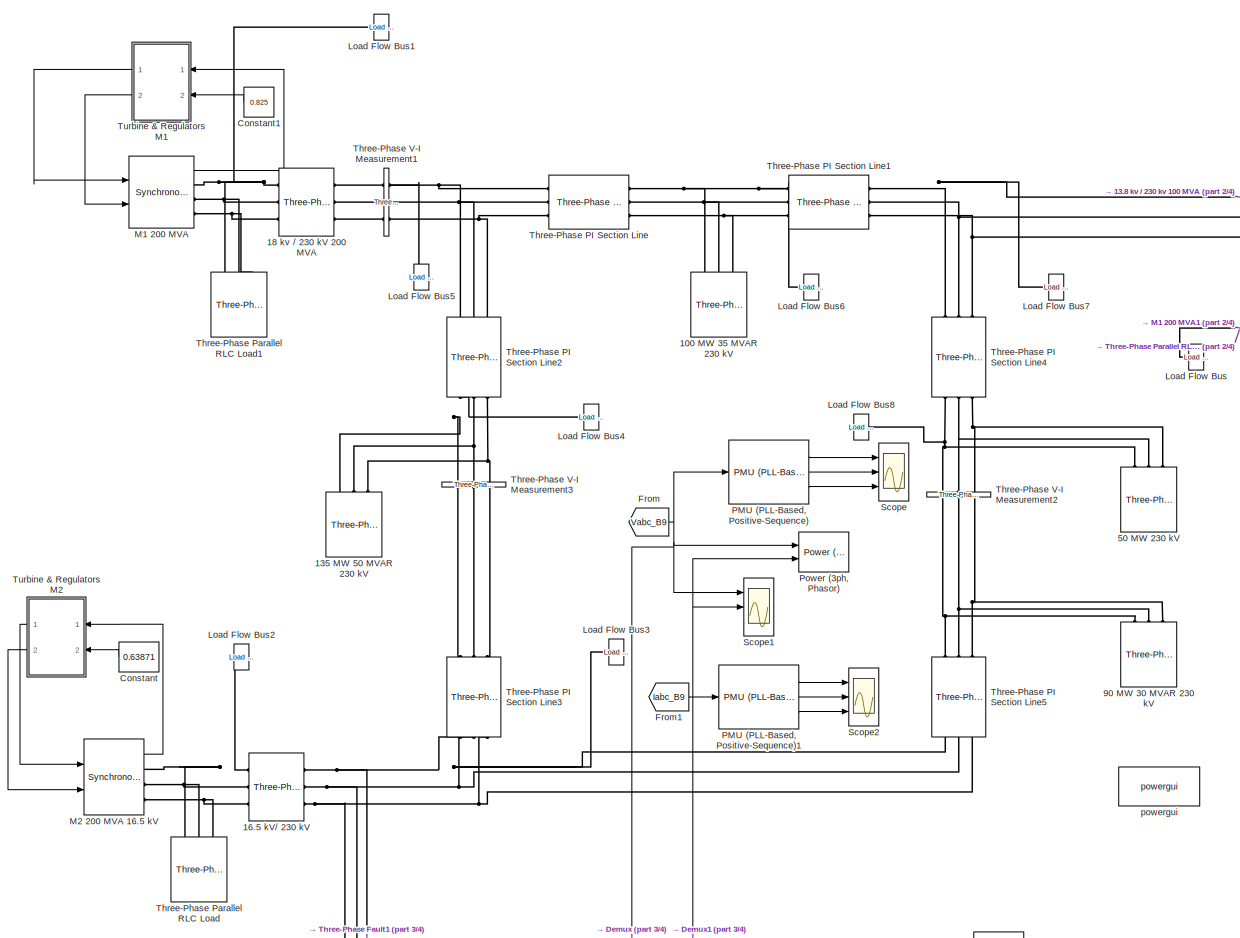
[diagram: root canvas - part 1/4, top left region]
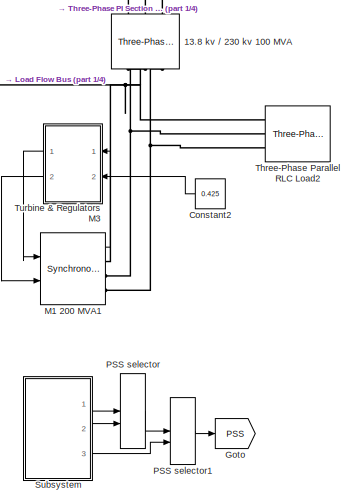
[diagram: root canvas - part 2/4, top right region]
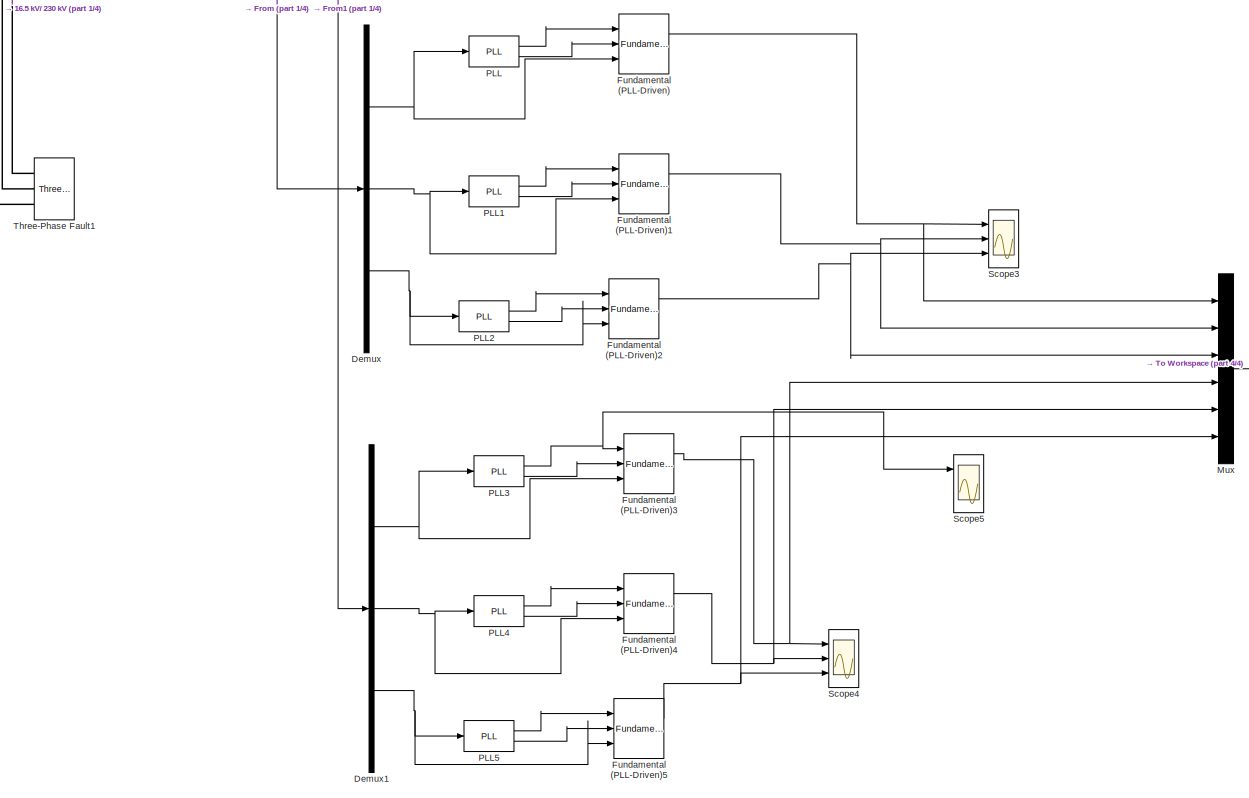
[diagram: root canvas - part 3/4, bottom center region]
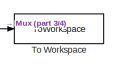
[diagram: root canvas - part 4/4, bottom right region]
MODEL slx_2ccf89e54fdf
KIND model
CONFIG AbsTol = auto
CONFIG EnableMultiTasking = off
CONFIG FixedStep = auto
CONFIG MaxStep = auto
CONFIG MinStep = auto
CONFIG RelTol = 1e-3
CONFIG SampleTimeConstraint = Unconstrained
CONFIG SolverName = ode5
CONFIG StartTime = 0.0
CONFIG StopTime = 10
BLOCK [Reference] 100 MW 35 MVAR 230 kV  REF=spsThreePhaseSeriesRLCLoadLib/Three-Phase
Series RLC Load
  AttributesFormatString = \n
  NameLocation = right
  Ports = [0, 0, 0, 0, 0, 3]
  SourceBlock = spsThreePhaseSeriesRLCLoadLib/Three-Phase\nSeries RLC Load
  SourceProductBaseCode = PS
  SourceType = Three-Phase Series RLC Load
BLOCK [Reference] 13.8 kv // 230 kv 100 MVA  REF=spsThreePhaseTransformerTwoWindingsLib/Three-Phase
Transformer
(Two Windings)
  NameLocation = left
  Ports = [0, 0, 0, 0, 0, 3, 3]
  SourceBlock = spsThreePhaseTransformerTwoWindingsLib/Three-Phase\nTransformer\n(Two Windings)
  SourceProductBaseCode = PS
  SourceType = Three-Phase Transformer (Two Windings)
BLOCK [Reference] 135 MW 50 MVAR 230 kV  REF=spsThreePhaseSeriesRLCLoadLib/Three-Phase
Series RLC Load
  AttributesFormatString = \n
  NameLocation = right
  Ports = [0, 0, 0, 0, 0, 3]
  SourceBlock = spsThreePhaseSeriesRLCLoadLib/Three-Phase\nSeries RLC Load
  SourceProductBaseCode = PS
  SourceType = Three-Phase Series RLC Load
BLOCK [Reference] 16.5 kV// 230 kV  REF=spsThreePhaseTransformerTwoWindingsLib/Three-Phase
Transformer
(Two Windings)
  NameLocation = top
  Ports = [0, 0, 0, 0, 0, 3, 3]
  SourceBlock = spsThreePhaseTransformerTwoWindingsLib/Three-Phase\nTransformer\n(Two Windings)
  SourceProductBaseCode = PS
  SourceType = Three-Phase Transformer (Two Windings)
BLOCK [Reference] 18 kv // 230 kV 200 MVA  REF=spsThreePhaseTransformerTwoWindingsLib/Three-Phase
Transformer
(Two Windings)
  Ports = [0, 0, 0, 0, 0, 3, 3]
  SourceBlock = spsThreePhaseTransformerTwoWindingsLib/Three-Phase\nTransformer\n(Two Windings)
  SourceProductBaseCode = PS
  SourceType = Three-Phase Transformer (Two Windings)
BLOCK [Reference] 50 MW 230 kV  REF=spsThreePhaseSeriesRLCLoadLib/Three-Phase
Series RLC Load
  AttributesFormatString = \n
  NameLocation = right
  Ports = [0, 0, 0, 0, 0, 3]
  SourceBlock = spsThreePhaseSeriesRLCLoadLib/Three-Phase\nSeries RLC Load
  SourceProductBaseCode = PS
  SourceType = Three-Phase Series RLC Load
BLOCK [Reference] 90 MW 30 MVAR 230 kV  REF=spsThreePhaseSeriesRLCLoadLib/Three-Phase
Series RLC Load
  AttributesFormatString = \n
  NameLocation = right
  Ports = [0, 0, 0, 0, 0, 3]
  SourceBlock = spsThreePhaseSeriesRLCLoadLib/Three-Phase\nSeries RLC Load
  SourceProductBaseCode = PS
  SourceType = Three-Phase Series RLC Load
BLOCK [Constant] Constant
  NameLocation = top
  Value = 0.63871
BLOCK [Constant] Constant1
  NameLocation = top
  Value = 0.825
BLOCK [Constant] Constant2
  NameLocation = top
  Value = 0.425
BLOCK [Demux] Demux
  Outputs = 3
  Ports = [1, 3]
BLOCK [Demux] Demux1
  Outputs = 3
  Ports = [1, 3]
BLOCK [From] From
  GotoTag = Vabc_B9
  TagVisibility = global
BLOCK [From] From1
  GotoTag = Iabc_B9
  TagVisibility = global
BLOCK [Reference] Fundamental (PLL-Driven)  REF=spsFundamentalPLLDrivenLib/Fundamental
(PLL-Driven)
  Ports = [3, 2]
  SourceBlock = spsFundamentalPLLDrivenLib/Fundamental\n(PLL-Driven)
  SourceProductBaseCode = PS
  SourceType = Fundamental (PLL-Driven)
BLOCK [Reference] Fundamental (PLL-Driven)1  REF=spsFundamentalPLLDrivenLib/Fundamental
(PLL-Driven)
  Ports = [3, 2]
  SourceBlock = spsFundamentalPLLDrivenLib/Fundamental\n(PLL-Driven)
  SourceProductBaseCode = PS
  SourceType = Fundamental (PLL-Driven)
BLOCK [Reference] Fundamental (PLL-Driven)2  REF=spsFundamentalPLLDrivenLib/Fundamental
(PLL-Driven)
  Ports = [3, 2]
  SourceBlock = spsFundamentalPLLDrivenLib/Fundamental\n(PLL-Driven)
  SourceProductBaseCode = PS
  SourceType = Fundamental (PLL-Driven)
BLOCK [Reference] Fundamental (PLL-Driven)3  REF=spsFundamentalPLLDrivenLib/Fundamental
(PLL-Driven)
  Ports = [3, 2]
  SourceBlock = spsFundamentalPLLDrivenLib/Fundamental\n(PLL-Driven)
  SourceProductBaseCode = PS
  SourceType = Fundamental (PLL-Driven)
BLOCK [Reference] Fundamental (PLL-Driven)4  REF=spsFundamentalPLLDrivenLib/Fundamental
(PLL-Driven)
  Ports = [3, 2]
  SourceBlock = spsFundamentalPLLDrivenLib/Fundamental\n(PLL-Driven)
  SourceProductBaseCode = PS
  SourceType = Fundamental (PLL-Driven)
BLOCK [Reference] Fundamental (PLL-Driven)5  REF=spsFundamentalPLLDrivenLib/Fundamental
(PLL-Driven)
  Ports = [3, 2]
  SourceBlock = spsFundamentalPLLDrivenLib/Fundamental\n(PLL-Driven)
  SourceProductBaseCode = PS
  SourceType = Fundamental (PLL-Driven)
BLOCK [Goto] Goto
  GotoTag = PSS
  TagVisibility = global
BLOCK [Reference] Load Flow Bus  REF=spsLoadFlowBusLib/Load Flow Bus
  AttributesFormatString = %<ID>\n%<Vbase>V\n%<VLF>pu\n%<angleLF>deg.
  Ports = [0, 0, 0, 0, 0, 1]
  SourceBlock = spsLoadFlowBusLib/Load Flow Bus
  SourceProductBaseCode = PS
  SourceType = Load Flow Bus
BLOCK [Reference] Load Flow Bus1  REF=spsLoadFlowBusLib/Load Flow Bus
  AttributesFormatString = %<ID>\n%<Vbase>V\n%<VLF>pu\n%<angleLF>deg.
  Ports = [0, 0, 0, 0, 0, 1]
  SourceBlock = spsLoadFlowBusLib/Load Flow Bus
  SourceProductBaseCode = PS
  SourceType = Load Flow Bus
BLOCK [Reference] Load Flow Bus2  REF=spsLoadFlowBusLib/Load Flow Bus
  AttributesFormatString = %<ID>\n%<Vbase>V\n%<VLF>pu\n%<angleLF>deg.
  Ports = [0, 0, 0, 0, 0, 1]
  SourceBlock = spsLoadFlowBusLib/Load Flow Bus
  SourceProductBaseCode = PS
  SourceType = Load Flow Bus
BLOCK [Reference] Load Flow Bus3  REF=spsLoadFlowBusLib/Load Flow Bus
  AttributesFormatString = %<ID>\n%<Vbase>V\n%<VLF>pu\n%<angleLF>deg.
  Ports = [0, 0, 0, 0, 0, 1]
  SourceBlock = spsLoadFlowBusLib/Load Flow Bus
  SourceProductBaseCode = PS
  SourceType = Load Flow Bus
BLOCK [Reference] Load Flow Bus4  REF=spsLoadFlowBusLib/Load Flow Bus
  AttributesFormatString = %<ID>\n%<Vbase>V\n%<VLF>pu\n%<angleLF>deg.
  Ports = [0, 0, 0, 0, 0, 1]
  SourceBlock = spsLoadFlowBusLib/Load Flow Bus
  SourceProductBaseCode = PS
  SourceType = Load Flow Bus
BLOCK [Reference] Load Flow Bus5  REF=spsLoadFlowBusLib/Load Flow Bus
  AttributesFormatString = %<ID>\n%<Vbase>V\n%<VLF>pu\n%<angleLF>deg.
  Ports = [0, 0, 0, 0, 0, 1]
  SourceBlock = spsLoadFlowBusLib/Load Flow Bus
  SourceProductBaseCode = PS
  SourceType = Load Flow Bus
BLOCK [Reference] Load Flow Bus6  REF=spsLoadFlowBusLib/Load Flow Bus
  AttributesFormatString = %<ID>\n%<Vbase>V\n%<VLF>pu\n%<angleLF>deg.
  Ports = [0, 0, 0, 0, 0, 1]
  SourceBlock = spsLoadFlowBusLib/Load Flow Bus
  SourceProductBaseCode = PS
  SourceType = Load Flow Bus
BLOCK [Reference] Load Flow Bus7  REF=spsLoadFlowBusLib/Load Flow Bus
  AttributesFormatString = %<ID>\n%<Vbase>V\n%<VLF>pu\n%<angleLF>deg.
  Ports = [0, 0, 0, 0, 0, 1]
  SourceBlock = spsLoadFlowBusLib/Load Flow Bus
  SourceProductBaseCode = PS
  SourceType = Load Flow Bus
BLOCK [Reference] Load Flow Bus8  REF=spsLoadFlowBusLib/Load Flow Bus
  AttributesFormatString = %<ID>\n%<Vbase>V\n%<VLF>pu\n%<angleLF>deg.
  NameLocation = top
  Ports = [0, 0, 0, 0, 0, 1]
  SourceBlock = spsLoadFlowBusLib/Load Flow Bus
  SourceProductBaseCode = PS
  SourceType = Load Flow Bus
BLOCK [Reference] M1 200 MVA  REF=spsSynchronousMachinepuStandardLib/Synchronous Machine
pu Standard
  AttributesFormatString = \n\n
  Ports = [2, 1, 0, 0, 0, 0, 3]
  SourceBlock = spsSynchronousMachinepuStandardLib/Synchronous Machine\npu Standard
  SourceProductName = Specialized Power Systems
  SourceType = Synchronous Machine
BLOCK [Reference] M1 200 MVA1  REF=spsSynchronousMachinepuStandardLib/Synchronous Machine
pu Standard
  AttributesFormatString = \n\n
  Ports = [2, 1, 0, 0, 0, 0, 3]
  SourceBlock = spsSynchronousMachinepuStandardLib/Synchronous Machine\npu Standard
  SourceProductName = Specialized Power Systems
  SourceType = Synchronous Machine
BLOCK [Reference] M2 200 MVA 16.5 kV  REF=spsSynchronousMachinepuStandardLib/Synchronous Machine
pu Standard
  AttributesFormatString = \n\n
  Ports = [2, 1, 0, 0, 0, 0, 3]
  SourceBlock = spsSynchronousMachinepuStandardLib/Synchronous Machine\npu Standard
  SourceProductName = Specialized Power Systems
  SourceType = Synchronous Machine
BLOCK [Mux] Mux
  DisplayOption = bar
  Inputs = 6
  Ports = [6, 1]
BLOCK [Reference] PLL  REF=spsPLLLib/PLL
  Ports = [1, 2]
  SourceBlock = spsPLLLib/PLL
  SourceProductBaseCode = PS
  SourceType = PLL
BLOCK [Reference] PLL1  REF=spsPLLLib/PLL
  Ports = [1, 2]
  SourceBlock = spsPLLLib/PLL
  SourceProductBaseCode = PS
  SourceType = PLL
BLOCK [Reference] PLL2  REF=spsPLLLib/PLL
  Ports = [1, 2]
  SourceBlock = spsPLLLib/PLL
  SourceProductBaseCode = PS
  SourceType = PLL
BLOCK [Reference] PLL3  REF=spsPLLLib/PLL
  Ports = [1, 2]
  SourceBlock = spsPLLLib/PLL
  SourceProductBaseCode = PS
  SourceType = PLL
BLOCK [Reference] PLL4  REF=spsPLLLib/PLL
  Ports = [1, 2]
  SourceBlock = spsPLLLib/PLL
  SourceProductBaseCode = PS
  SourceType = PLL
BLOCK [Reference] PLL5  REF=spsPLLLib/PLL
  Ports = [1, 2]
  SourceBlock = spsPLLLib/PLL
  SourceProductBaseCode = PS
  SourceType = PLL
BLOCK [Reference] PMU (PLL-Based, Positive-Sequence)  REF=spsPMUPLLBasedPositiveSequenceLib/PMU
(PLL-Based,
Positive-Sequence)
  Ports = [1, 3]
  SourceBlock = spsPMUPLLBasedPositiveSequenceLib/PMU\n(PLL-Based,\nPositive-Sequence)
  SourceProductBaseCode = PS
  SourceType = PMU (PLL-Based, Positive-Sequence)
BLOCK [Reference] PMU (PLL-Based, Positive-Sequence)1  REF=spsPMUPLLBasedPositiveSequenceLib/PMU
(PLL-Based,
Positive-Sequence)
  Ports = [1, 3]
  SourceBlock = spsPMUPLLBasedPositiveSequenceLib/PMU\n(PLL-Based,\nPositive-Sequence)
  SourceProductBaseCode = PS
  SourceType = PMU (PLL-Based, Positive-Sequence)
BLOCK [ManualSwitch] PSS selector
  CurrentSetting = 0
BLOCK [ManualSwitch] PSS selector1
  CurrentSetting = 0
BLOCK [Reference] Power (3ph, Phasor)  REF=spsPower3phPhasorLib/Power
(3ph, Phasor)
  Ports = [2, 2]
  SourceBlock = spsPower3phPhasorLib/Power\n(3ph, Phasor)
  SourceProductBaseCode = PS
  SourceType = Power (3ph, Phasor)
BLOCK [Scope] Scope
  Floating = off
  NumInputPorts = 3
  Ports = [3]
  ScopeSpecificationString = Simulink.scopes.TimeScopeBlockCfg('CurrentConfiguration', extmgr.ConfigurationSet(extmgr.Configuration('Core','General UI',true),extmgr.Configuration('Core','Source UI',true),extmgr.Configuration('Sources','WiredSimulink',true),extmgr.Configuration('Visuals','Time Domain',true,'SerializedDisplays',{struct('MinYLimReal','0.25222','MaxYLimReal','1.15407','YLabelReal','','MinYLimMag','0.25222','MaxYL...<+2842ch>
BLOCK [Scope] Scope1
  Floating = off
  NumInputPorts = 3
  Ports = [3]
  ScopeSpecificationString = Simulink.scopes.TimeScopeBlockCfg('CurrentConfiguration', extmgr.ConfigurationSet(extmgr.Configuration('Core','General UI',true),extmgr.Configuration('Core','Source UI',true),extmgr.Configuration('Sources','WiredSimulink',true,'DataLoggingVariableName','ScopeData1'),extmgr.Configuration('Visuals','Time Domain',true,'SerializedDisplays',{struct('MinYLimReal','-1.33301','MaxYLimReal','1.34537','YLab...<+2884ch>
BLOCK [Scope] Scope2
  Floating = off
  NumInputPorts = 3
  Ports = [3]
  ScopeSpecificationString = Simulink.scopes.TimeScopeBlockCfg('CurrentConfiguration', extmgr.ConfigurationSet(extmgr.Configuration('Core','General UI',true),extmgr.Configuration('Core','Source UI',true),extmgr.Configuration('Sources','WiredSimulink',true,'DataLoggingVariableName','ScopeData2'),extmgr.Configuration('Visuals','Time Domain',true,'SerializedDisplays',{struct('MinYLimReal','-138.11405','MaxYLimReal','1253.02649',...<+2894ch>
BLOCK [Scope] Scope3
  Floating = off
  NumInputPorts = 3
  Ports = [3]
  ScopeSpecificationString = Simulink.scopes.TimeScopeBlockCfg('CurrentConfiguration', extmgr.ConfigurationSet(extmgr.Configuration('Core','General UI',true),extmgr.Configuration('Core','Source UI',true),extmgr.Configuration('Sources','WiredSimulink',true,'DataLoggingVariableName','ScopeData1'),extmgr.Configuration('Visuals','Time Domain',true,'SerializedDisplays',{struct('MinYLimReal','0.02025','MaxYLimReal','1.19558','YLabe...<+2847ch>
BLOCK [Scope] Scope4
  Floating = off
  NumInputPorts = 3
  Ports = [3]
  ScopeSpecificationString = Simulink.scopes.TimeScopeBlockCfg('CurrentConfiguration', extmgr.ConfigurationSet(extmgr.Configuration('Core','General UI',true),extmgr.Configuration('Core','Source UI',true),extmgr.Configuration('Sources','WiredSimulink',true,'DataLoggingVariableName','ScopeData2'),extmgr.Configuration('Visuals','Time Domain',true,'SerializedDisplays',{struct('MinYLimReal','-69.48384','MaxYLimReal','635.35459','Y...<+2862ch>
BLOCK [Scope] Scope5
  Floating = off
  NumInputPorts = 3
  Ports = [3]
  ScopeSpecificationString = Simulink.scopes.TimeScopeBlockCfg('CurrentConfiguration', extmgr.ConfigurationSet(extmgr.Configuration('Core','General UI',true),extmgr.Configuration('Core','Source UI',true),extmgr.Configuration('Sources','WiredSimulink',true,'DataLoggingVariableName','ScopeData1'),extmgr.Configuration('Visuals','Time Domain',true,'SerializedDisplays',{struct('MinYLimReal','59.50035','MaxYLimReal','60.46886','YLa...<+2798ch>
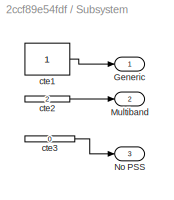
BLOCK [SubSystem] Subsystem
  Ports = [0, 3]
  RequestExecContextInheritance = off
BLOCK [Outport] Subsystem/Generic
  VectorParamsAs1DForOutWhenUnconnected = off
BLOCK [Outport] Subsystem/Multiband
  Port = 2
  VectorParamsAs1DForOutWhenUnconnected = off
BLOCK [Outport] Subsystem/No PSS
  Port = 3
  VectorParamsAs1DForOutWhenUnconnected = off
BLOCK [Constant] Subsystem/cte1
BLOCK [Constant] Subsystem/cte2
  Value = 2
BLOCK [Constant] Subsystem/cte3
  Value = 0
BLOCK [Reference] Three-Phase Fault1  REF=spsThreePhaseFaultLib/Three-Phase Fault
  Ports = [0, 0, 0, 0, 0, 3]
  SourceBlock = spsThreePhaseFaultLib/Three-Phase Fault
  SourceProductBaseCode = PS
  SourceType = Three-Phase Fault
BLOCK [Reference] Three-Phase PI Section Line  REF=spsThreePhasePISectionLineLib/Three-Phase
PI Section Line
  AttributesFormatString = \n
  Ports = [0, 0, 0, 0, 0, 3, 3]
  SourceBlock = spsThreePhasePISectionLineLib/Three-Phase\nPI Section Line
  SourceProductBaseCode = PS
  SourceType = Three-Phase PI Section Line
BLOCK [Reference] Three-Phase PI Section Line1  REF=spsThreePhasePISectionLineLib/Three-Phase
PI Section Line
  AttributesFormatString = \n
  Ports = [0, 0, 0, 0, 0, 3, 3]
  SourceBlock = spsThreePhasePISectionLineLib/Three-Phase\nPI Section Line
  SourceProductBaseCode = PS
  SourceType = Three-Phase PI Section Line
BLOCK [Reference] Three-Phase PI Section Line2  REF=spsThreePhasePISectionLineLib/Three-Phase
PI Section Line
  AttributesFormatString = \n
  NameLocation = left
  Ports = [0, 0, 0, 0, 0, 3, 3]
  SourceBlock = spsThreePhasePISectionLineLib/Three-Phase\nPI Section Line
  SourceProductBaseCode = PS
  SourceType = Three-Phase PI Section Line
BLOCK [Reference] Three-Phase PI Section Line3  REF=spsThreePhasePISectionLineLib/Three-Phase
PI Section Line
  AttributesFormatString = \n
  NameLocation = left
  Ports = [0, 0, 0, 0, 0, 3, 3]
  SourceBlock = spsThreePhasePISectionLineLib/Three-Phase\nPI Section Line
  SourceProductBaseCode = PS
  SourceType = Three-Phase PI Section Line
BLOCK [Reference] Three-Phase PI Section Line4  REF=spsThreePhasePISectionLineLib/Three-Phase
PI Section Line
  AttributesFormatString = \n
  NameLocation = left
  Ports = [0, 0, 0, 0, 0, 3, 3]
  SourceBlock = spsThreePhasePISectionLineLib/Three-Phase\nPI Section Line
  SourceProductBaseCode = PS
  SourceType = Three-Phase PI Section Line
BLOCK [Reference] Three-Phase PI Section Line5  REF=spsThreePhasePISectionLineLib/Three-Phase
PI Section Line
  AttributesFormatString = \n
  NameLocation = left
  Ports = [0, 0, 0, 0, 0, 3, 3]
  SourceBlock = spsThreePhasePISectionLineLib/Three-Phase\nPI Section Line
  SourceProductBaseCode = PS
  SourceType = Three-Phase PI Section Line
BLOCK [Reference] Three-Phase Parallel RLC Load  REF=spsThreePhaseParallelRLCLoadLib/Three-Phase
Parallel RLC Load
  AttributesFormatString = \n
  NameLocation = right
  Ports = [0, 0, 0, 0, 0, 3]
  SourceBlock = spsThreePhaseParallelRLCLoadLib/Three-Phase\nParallel RLC Load
  SourceProductBaseCode = PS
  SourceType = Three-Phase Parallel RLC Load
BLOCK [Reference] Three-Phase Parallel RLC Load1  REF=spsThreePhaseParallelRLCLoadLib/Three-Phase
Parallel RLC Load
  AttributesFormatString = \n
  NameLocation = right
  Ports = [0, 0, 0, 0, 0, 3]
  SourceBlock = spsThreePhaseParallelRLCLoadLib/Three-Phase\nParallel RLC Load
  SourceProductBaseCode = PS
  SourceType = Three-Phase Parallel RLC Load
BLOCK [Reference] Three-Phase Parallel RLC Load2  REF=spsThreePhaseParallelRLCLoadLib/Three-Phase
Parallel RLC Load
  AttributesFormatString = \n
  NameLocation = top
  Ports = [0, 0, 0, 0, 0, 3]
  SourceBlock = spsThreePhaseParallelRLCLoadLib/Three-Phase\nParallel RLC Load
  SourceProductBaseCode = PS
  SourceType = Three-Phase Parallel RLC Load
BLOCK [Reference] Three-Phase V-I Measurement1  REF=spsThreePhaseVIMeasurementLib/Three-Phase
V-I Measurement
  Ports = [0, 0, 0, 0, 0, 3, 3]
  SourceBlock = spsThreePhaseVIMeasurementLib/Three-Phase\nV-I Measurement
  SourceProductBaseCode = PS
  SourceType = Three-Phase VI Measurement
BLOCK [Reference] Three-Phase V-I Measurement2  REF=spsThreePhaseVIMeasurementLib/Three-Phase
V-I Measurement
  NameLocation = right
  Ports = [0, 0, 0, 0, 0, 3, 3]
  SourceBlock = spsThreePhaseVIMeasurementLib/Three-Phase\nV-I Measurement
  SourceProductBaseCode = PS
  SourceType = Three-Phase VI Measurement
BLOCK [Reference] Three-Phase V-I Measurement3  REF=spsThreePhaseVIMeasurementLib/Three-Phase
V-I Measurement
  NameLocation = right
  Ports = [0, 0, 0, 0, 0, 3, 3]
  SourceBlock = spsThreePhaseVIMeasurementLib/Three-Phase\nV-I Measurement
  SourceProductBaseCode = PS
  SourceType = Three-Phase VI Measurement
BLOCK [ToWorkspace] To Workspace
  FixptAsFi = on
  MaxDataPoints = inf
  Ports = [1]
  SampleTime = -1
  SaveFormat = Timeseries
  VariableName = mux_data
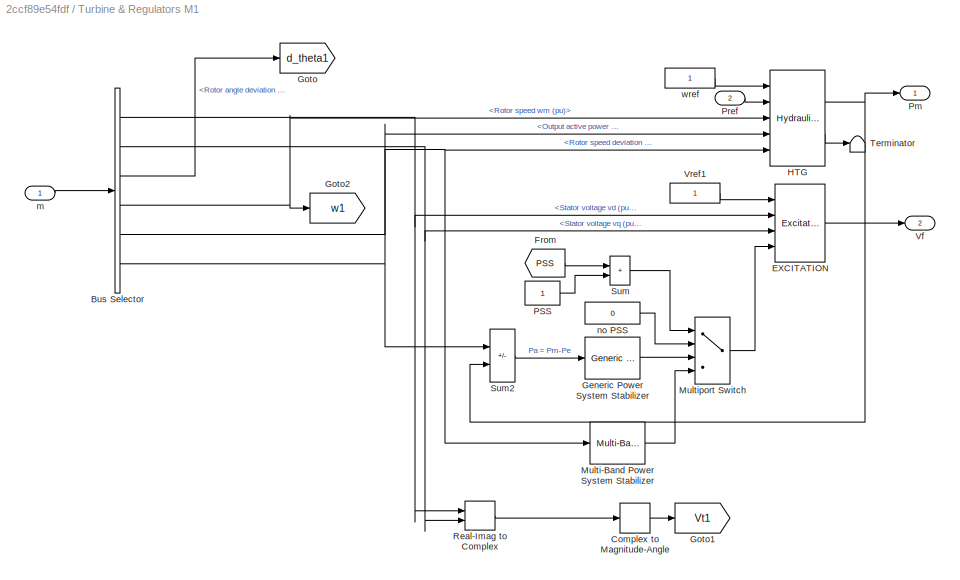
BLOCK [SubSystem] Turbine & Regulators M1
  Ports = [2, 2]
  RequestExecContextInheritance = off
BLOCK [BusSelector] Turbine & Regulators M1/Bus Selector
  OutputSignals = dq0 components.Stator voltage  vd (pu),dq0 components.Stator voltage  vq (pu),Mechanical.Rotor angle deviation  d_theta (rad),Mechanical.Rotor speed  wm  (pu),Mechanical.Rotor speed deviation  dw (pu),Output active power   Peo (pu)  <repeated x3 — deduplicated; at blocks: Bus Selector>
  Ports = [1, 6]
BLOCK [ComplexToMagnitudeAngle] Turbine & Regulators M1/Complex to Magnitude-Angle
  Output = Magnitude
  Ports = [1, 1]
BLOCK [Reference] Turbine & Regulators M1/EXCITATION  REF=spsExcitationSystemLib/Excitation System
  Ports = [4, 1]
  SourceBlock = spsExcitationSystemLib/Excitation System
  SourceProductName = Specialized Power Systems
  SourceType = Excitation System
BLOCK [From] Turbine & Regulators M1/From
  CloseFcn = tagdialog Close
  GotoTag = PSS
  TagVisibility = global
BLOCK [Reference] Turbine & Regulators M1/Generic Power System Stabilizer  REF=spsGenericPowerSystemStabilizerLib/Generic
Power System Stabilizer
  Ports = [1, 1]
  SourceBlock = spsGenericPowerSystemStabilizerLib/Generic\nPower System Stabilizer
  SourceProductName = Specialized Power Systems
  SourceType = Generic Power System Stabilizer
BLOCK [Goto] Turbine & Regulators M1/Goto
  GotoTag = d_theta1
  TagVisibility = global
BLOCK [Goto] Turbine & Regulators M1/Goto1
  GotoTag = Vt1
  TagVisibility = global
BLOCK [Goto] Turbine & Regulators M1/Goto2
  GotoTag = w1
  TagVisibility = global
BLOCK [Reference] Turbine & Regulators M1/HTG  REF=spsHydraulicTurbineandGovernorLib/Hydraulic Turbine
and Governor
  Ports = [5, 2]
  SourceBlock = spsHydraulicTurbineandGovernorLib/Hydraulic Turbine\nand Governor
  SourceProductName = Specialized Power Systems
  SourceType = Hydraulic Turbine and Governor
BLOCK [Reference] Turbine & Regulators M1/Multi-Band Power System Stabilizer  REF=spsMultiBandPowerSystemStabilizerLib/Multi-Band
Power System Stabilizer
  Ports = [1, 1]
  SourceBlock = spsMultiBandPowerSystemStabilizerLib/Multi-Band\nPower System Stabilizer
  SourceProductName = Specialized Power Systems
  SourceType = Multi-Band Power System Stabilizer
BLOCK [MultiPortSwitch] Turbine & Regulators M1/Multiport Switch
  InputSameDT = off
  Ports = [4, 1]
BLOCK [Constant] Turbine & Regulators M1/PSS
BLOCK [Outport] Turbine & Regulators M1/Pm
  InitialOutput = 0
  VectorParamsAs1DForOutWhenUnconnected = off
BLOCK [Inport] Turbine & Regulators M1/Pref
  Port = 2
BLOCK [RealImagToComplex] Turbine & Regulators M1/Real-Imag to Complex
  Ports = [2, 1]
BLOCK [Sum] Turbine & Regulators M1/Sum
  IconShape = rectangular
  Ports = [2, 1]
  SaturateOnIntegerOverflow = on
BLOCK [Sum] Turbine & Regulators M1/Sum2
  IconShape = rectangular
  InputSameDT = on
  Inputs = -+
  OutDataTypeStr = Inherit: Same as first input
  Ports = [2, 1]
  SaturateOnIntegerOverflow = on
BLOCK [Terminator] Turbine & Regulators M1/Terminator
BLOCK [Outport] Turbine & Regulators M1/Vf
  InitialOutput = 0
  Port = 2
  VectorParamsAs1DForOutWhenUnconnected = off
BLOCK [Constant] Turbine & Regulators M1/Vref1
BLOCK [Inport] Turbine & Regulators M1/m
BLOCK [Constant] Turbine & Regulators M1/no PSS
  Value = 0
BLOCK [Constant] Turbine & Regulators M1/wref
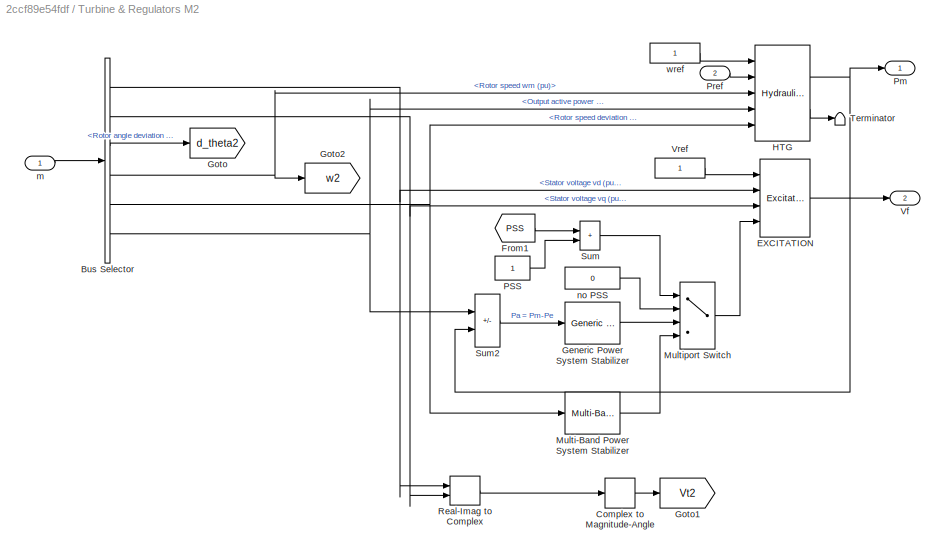
BLOCK [SubSystem] Turbine & Regulators M2
  Ports = [2, 2]
  RequestExecContextInheritance = off
BLOCK [BusSelector] Turbine & Regulators M2/Bus Selector
  Ports = [1, 6]
BLOCK [ComplexToMagnitudeAngle] Turbine & Regulators M2/Complex to Magnitude-Angle
  Output = Magnitude
  Ports = [1, 1]
BLOCK [Reference] Turbine & Regulators M2/EXCITATION  REF=spsExcitationSystemLib/Excitation System
  Ports = [4, 1]
  SourceBlock = spsExcitationSystemLib/Excitation System
  SourceProductName = Specialized Power Systems
  SourceType = Excitation System
BLOCK [From] Turbine & Regulators M2/From1
  CloseFcn = tagdialog Close
  GotoTag = PSS
  TagVisibility = global
BLOCK [Reference] Turbine & Regulators M2/Generic Power System Stabilizer  REF=spsGenericPowerSystemStabilizerLib/Generic
Power System Stabilizer
  Ports = [1, 1]
  SourceBlock = spsGenericPowerSystemStabilizerLib/Generic\nPower System Stabilizer
  SourceProductName = Specialized Power Systems
  SourceType = Generic Power System Stabilizer
BLOCK [Goto] Turbine & Regulators M2/Goto
  GotoTag = d_theta2
  TagVisibility = global
BLOCK [Goto] Turbine & Regulators M2/Goto1
  GotoTag = Vt2
  TagVisibility = global
BLOCK [Goto] Turbine & Regulators M2/Goto2
  GotoTag = w2
  TagVisibility = global
BLOCK [Reference] Turbine & Regulators M2/HTG  REF=spsHydraulicTurbineandGovernorLib/Hydraulic Turbine
and Governor
  Ports = [5, 2]
  SourceBlock = spsHydraulicTurbineandGovernorLib/Hydraulic Turbine\nand Governor
  SourceProductName = Specialized Power Systems
  SourceType = Hydraulic Turbine and Governor
BLOCK [Reference] Turbine & Regulators M2/Multi-Band Power System Stabilizer  REF=spsMultiBandPowerSystemStabilizerLib/Multi-Band
Power System Stabilizer
  Ports = [1, 1]
  SourceBlock = spsMultiBandPowerSystemStabilizerLib/Multi-Band\nPower System Stabilizer
  SourceProductName = Specialized Power Systems
  SourceType = Multi-Band Power System Stabilizer
BLOCK [MultiPortSwitch] Turbine & Regulators M2/Multiport Switch
  InputSameDT = off
  Ports = [4, 1]
BLOCK [Constant] Turbine & Regulators M2/PSS
BLOCK [Outport] Turbine & Regulators M2/Pm
  InitialOutput = 0
  VectorParamsAs1DForOutWhenUnconnected = off
BLOCK [Inport] Turbine & Regulators M2/Pref
  Port = 2
BLOCK [RealImagToComplex] Turbine & Regulators M2/Real-Imag to Complex
  Ports = [2, 1]
BLOCK [Sum] Turbine & Regulators M2/Sum
  IconShape = rectangular
  Ports = [2, 1]
  SaturateOnIntegerOverflow = on
BLOCK [Sum] Turbine & Regulators M2/Sum2
  IconShape = rectangular
  InputSameDT = on
  Inputs = -+
  OutDataTypeStr = Inherit: Same as first input
  Ports = [2, 1]
  SaturateOnIntegerOverflow = on
BLOCK [Terminator] Turbine & Regulators M2/Terminator
BLOCK [Outport] Turbine & Regulators M2/Vf
  InitialOutput = 0
  Port = 2
  VectorParamsAs1DForOutWhenUnconnected = off
BLOCK [Constant] Turbine & Regulators M2/Vref
BLOCK [Inport] Turbine & Regulators M2/m
BLOCK [Constant] Turbine & Regulators M2/no PSS
  Value = 0
BLOCK [Constant] Turbine & Regulators M2/wref
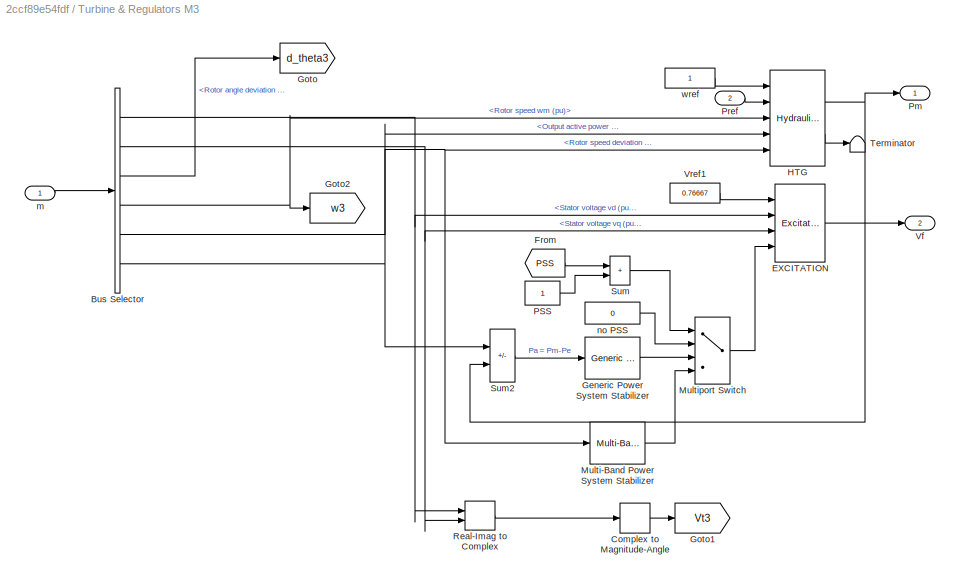
BLOCK [SubSystem] Turbine & Regulators M3
  Ports = [2, 2]
  RequestExecContextInheritance = off
BLOCK [BusSelector] Turbine & Regulators M3/Bus Selector
  Ports = [1, 6]
BLOCK [ComplexToMagnitudeAngle] Turbine & Regulators M3/Complex to Magnitude-Angle
  Output = Magnitude
  Ports = [1, 1]
BLOCK [Reference] Turbine & Regulators M3/EXCITATION  REF=spsExcitationSystemLib/Excitation System
  Ports = [4, 1]
  SourceBlock = spsExcitationSystemLib/Excitation System
  SourceProductName = Specialized Power Systems
  SourceType = Excitation System
BLOCK [From] Turbine & Regulators M3/From
  CloseFcn = tagdialog Close
  GotoTag = PSS
  TagVisibility = global
BLOCK [Reference] Turbine & Regulators M3/Generic Power System Stabilizer  REF=spsGenericPowerSystemStabilizerLib/Generic
Power System Stabilizer
  Ports = [1, 1]
  SourceBlock = spsGenericPowerSystemStabilizerLib/Generic\nPower System Stabilizer
  SourceProductName = Specialized Power Systems
  SourceType = Generic Power System Stabilizer
BLOCK [Goto] Turbine & Regulators M3/Goto
  GotoTag = d_theta3
  TagVisibility = global
BLOCK [Goto] Turbine & Regulators M3/Goto1
  GotoTag = Vt3
  TagVisibility = global
BLOCK [Goto] Turbine & Regulators M3/Goto2
  GotoTag = w3
  TagVisibility = global
BLOCK [Reference] Turbine & Regulators M3/HTG  REF=spsHydraulicTurbineandGovernorLib/Hydraulic Turbine
and Governor
  Ports = [5, 2]
  SourceBlock = spsHydraulicTurbineandGovernorLib/Hydraulic Turbine\nand Governor
  SourceProductName = Specialized Power Systems
  SourceType = Hydraulic Turbine and Governor
BLOCK [Reference] Turbine & Regulators M3/Multi-Band Power System Stabilizer  REF=spsMultiBandPowerSystemStabilizerLib/Multi-Band
Power System Stabilizer
  Ports = [1, 1]
  SourceBlock = spsMultiBandPowerSystemStabilizerLib/Multi-Band\nPower System Stabilizer
  SourceProductName = Specialized Power Systems
  SourceType = Multi-Band Power System Stabilizer
BLOCK [MultiPortSwitch] Turbine & Regulators M3/Multiport Switch
  InputSameDT = off
  Ports = [4, 1]
BLOCK [Constant] Turbine & Regulators M3/PSS
BLOCK [Outport] Turbine & Regulators M3/Pm
  InitialOutput = 0
  VectorParamsAs1DForOutWhenUnconnected = off
BLOCK [Inport] Turbine & Regulators M3/Pref
  Port = 2
BLOCK [RealImagToComplex] Turbine & Regulators M3/Real-Imag to Complex
  Ports = [2, 1]
BLOCK [Sum] Turbine & Regulators M3/Sum
  IconShape = rectangular
  Ports = [2, 1]
  SaturateOnIntegerOverflow = on
BLOCK [Sum] Turbine & Regulators M3/Sum2
  IconShape = rectangular
  InputSameDT = on
  Inputs = -+
  OutDataTypeStr = Inherit: Same as first input
  Ports = [2, 1]
  SaturateOnIntegerOverflow = on
BLOCK [Terminator] Turbine & Regulators M3/Terminator
BLOCK [Outport] Turbine & Regulators M3/Vf
  InitialOutput = 0
  Port = 2
  VectorParamsAs1DForOutWhenUnconnected = off
BLOCK [Constant] Turbine & Regulators M3/Vref1
  Value = 0.76667
BLOCK [Inport] Turbine & Regulators M3/m
BLOCK [Constant] Turbine & Regulators M3/no PSS
  Value = 0
BLOCK [Constant] Turbine & Regulators M3/wref
BLOCK [Reference] powergui  REF=spspowerguiLib/powergui
  Ports = []
  Priority = 1
  SourceBlock = spspowerguiLib/powergui
  SourceProductBaseCode = PS
  SourceType = PSB option menu block
LINE Constant1:1 -> Turbine & Regulators M1:2
LINE Constant2:1 -> Turbine & Regulators M3:2
LINE Constant:1 -> Turbine & Regulators M2:2
NET Demux1:1 -> Fundamental (PLL-Driven)3:3, PLL3:1
NET Demux1:2 -> Fundamental (PLL-Driven)4:3, PLL4:1
NET Demux1:3 -> Fundamental (PLL-Driven)5:3, PLL5:1
NET Demux:1 -> Fundamental (PLL-Driven):3, PLL:1
NET Demux:2 -> Fundamental (PLL-Driven)1:3, PLL1:1
NET Demux:3 -> Fundamental (PLL-Driven)2:3, PLL2:1
NET From1:1 -> Demux1:1, PMU (PLL-Based, Positive-Sequence)1:1, Power (3ph, Phasor):2, Scope1:2
NET From:1 -> Demux:1, PMU (PLL-Based, Positive-Sequence):1, Power (3ph, Phasor):1, Scope1:1
NET Fundamental (PLL-Driven)1:1 -> Mux:2, Scope3:2
NET Fundamental (PLL-Driven)2:1 -> Mux:3, Scope3:3
NET Fundamental (PLL-Driven)3:1 -> Mux:4, Scope4:1
NET Fundamental (PLL-Driven)4:1 -> Mux:5, Scope4:2
NET Fundamental (PLL-Driven)5:1 -> Mux:6, Scope4:3
NET Fundamental (PLL-Driven):1 -> Mux:1, Scope3:1
LINE M1 200 MVA1:1 -> Turbine & Regulators M3:1
LINE M1 200 MVA:1 -> Turbine & Regulators M1:1
LINE M2 200 MVA 16.5 kV:1 -> Turbine & Regulators M2:1
LINE Mux:1 -> To Workspace:1
LINE PLL1:1 -> Fundamental (PLL-Driven)1:1
LINE PLL1:2 -> Fundamental (PLL-Driven)1:2
LINE PLL2:1 -> Fundamental (PLL-Driven)2:1
LINE PLL2:2 -> Fundamental (PLL-Driven)2:2
NET PLL3:1 -> Fundamental (PLL-Driven)3:1, Scope5:1
LINE PLL3:2 -> Fundamental (PLL-Driven)3:2
LINE PLL4:1 -> Fundamental (PLL-Driven)4:1
LINE PLL4:2 -> Fundamental (PLL-Driven)4:2
LINE PLL5:1 -> Fundamental (PLL-Driven)5:1
LINE PLL5:2 -> Fundamental (PLL-Driven)5:2
LINE PLL:1 -> Fundamental (PLL-Driven):1
LINE PLL:2 -> Fundamental (PLL-Driven):2
LINE PMU (PLL-Based, Positive-Sequence)1:1 -> Scope2:1
LINE PMU (PLL-Based, Positive-Sequence)1:2 -> Scope2:2
LINE PMU (PLL-Based, Positive-Sequence)1:3 -> Scope2:3
LINE PMU (PLL-Based, Positive-Sequence):1 -> Scope:1
LINE PMU (PLL-Based, Positive-Sequence):2 -> Scope:2
LINE PMU (PLL-Based, Positive-Sequence):3 -> Scope:3
LINE PSS selector1:1 -> Goto:1
LINE PSS selector:1 -> PSS selector1:1
LINE Subsystem/cte1:1 -> Subsystem/Generic:1
LINE Subsystem/cte2:1 -> Subsystem/Multiband:1
LINE Subsystem/cte3:1 -> Subsystem/No PSS:1
LINE Subsystem:1 -> PSS selector:1
LINE Subsystem:2 -> PSS selector:2
LINE Subsystem:3 -> PSS selector1:2
NET Turbine & Regulators M1/Bus Selector:1 -> Turbine & Regulators M1/EXCITATION:2, Turbine & Regulators M1/Real-Imag to Complex:1
NET Turbine & Regulators M1/Bus Selector:2 -> Turbine & Regulators M1/EXCITATION:3, Turbine & Regulators M1/Real-Imag to Complex:2
LINE Turbine & Regulators M1/Bus Selector:3 -> Turbine & Regulators M1/Goto:1
NET Turbine & Regulators M1/Bus Selector:4 -> Turbine & Regulators M1/Goto2:1, Turbine & Regulators M1/HTG:3
NET Turbine & Regulators M1/Bus Selector:5 -> Turbine & Regulators M1/HTG:5, Turbine & Regulators M1/Multi-Band Power System Stabilizer:1
NET Turbine & Regulators M1/Bus Selector:6 -> Turbine & Regulators M1/HTG:4, Turbine & Regulators M1/Sum2:1
LINE Turbine & Regulators M1/Complex to Magnitude-Angle:1 -> Turbine & Regulators M1/Goto1:1
LINE Turbine & Regulators M1/EXCITATION:1 -> Turbine & Regulators M1/Vf:1
LINE Turbine & Regulators M1/From:1 -> Turbine & Regulators M1/Sum:1
LINE Turbine & Regulators M1/Generic Power System Stabilizer:1 -> Turbine & Regulators M1/Multiport Switch:3
NET Turbine & Regulators M1/HTG:1 -> Turbine & Regulators M1/Pm:1, Turbine & Regulators M1/Sum2:2
LINE Turbine & Regulators M1/HTG:2 -> Turbine & Regulators M1/Terminator:1
LINE Turbine & Regulators M1/Multi-Band Power System Stabilizer:1 -> Turbine & Regulators M1/Multiport Switch:4
LINE Turbine & Regulators M1/Multiport Switch:1 -> Turbine & Regulators M1/EXCITATION:4
LINE Turbine & Regulators M1/PSS:1 -> Turbine & Regulators M1/Sum:2
LINE Turbine & Regulators M1/Pref:1 -> Turbine & Regulators M1/HTG:2
LINE Turbine & Regulators M1/Real-Imag to Complex:1 -> Turbine & Regulators M1/Complex to Magnitude-Angle:1
LINE Turbine & Regulators M1/Sum2:1 -> Turbine & Regulators M1/Generic Power System Stabilizer:1
LINE Turbine & Regulators M1/Sum:1 -> Turbine & Regulators M1/Multiport Switch:1
LINE Turbine & Regulators M1/Vref1:1 -> Turbine & Regulators M1/EXCITATION:1
LINE Turbine & Regulators M1/m:1 -> Turbine & Regulators M1/Bus Selector:1
LINE Turbine & Regulators M1/no PSS:1 -> Turbine & Regulators M1/Multiport Switch:2
LINE Turbine & Regulators M1/wref:1 -> Turbine & Regulators M1/HTG:1
LINE Turbine & Regulators M1:1 -> M1 200 MVA:1
LINE Turbine & Regulators M1:2 -> M1 200 MVA:2
NET Turbine & Regulators M2/Bus Selector:1 -> Turbine & Regulators M2/EXCITATION:2, Turbine & Regulators M2/Real-Imag to Complex:1
NET Turbine & Regulators M2/Bus Selector:2 -> Turbine & Regulators M2/EXCITATION:3, Turbine & Regulators M2/Real-Imag to Complex:2
LINE Turbine & Regulators M2/Bus Selector:3 -> Turbine & Regulators M2/Goto:1
NET Turbine & Regulators M2/Bus Selector:4 -> Turbine & Regulators M2/Goto2:1, Turbine & Regulators M2/HTG:3
NET Turbine & Regulators M2/Bus Selector:5 -> Turbine & Regulators M2/HTG:5, Turbine & Regulators M2/Multi-Band Power System Stabilizer:1
NET Turbine & Regulators M2/Bus Selector:6 -> Turbine & Regulators M2/HTG:4, Turbine & Regulators M2/Sum2:1
LINE Turbine & Regulators M2/Complex to Magnitude-Angle:1 -> Turbine & Regulators M2/Goto1:1
LINE Turbine & Regulators M2/EXCITATION:1 -> Turbine & Regulators M2/Vf:1
LINE Turbine & Regulators M2/From1:1 -> Turbine & Regulators M2/Sum:1
LINE Turbine & Regulators M2/Generic Power System Stabilizer:1 -> Turbine & Regulators M2/Multiport Switch:3
NET Turbine & Regulators M2/HTG:1 -> Turbine & Regulators M2/Pm:1, Turbine & Regulators M2/Sum2:2
LINE Turbine & Regulators M2/HTG:2 -> Turbine & Regulators M2/Terminator:1
LINE Turbine & Regulators M2/Multi-Band Power System Stabilizer:1 -> Turbine & Regulators M2/Multiport Switch:4
LINE Turbine & Regulators M2/Multiport Switch:1 -> Turbine & Regulators M2/EXCITATION:4
LINE Turbine & Regulators M2/PSS:1 -> Turbine & Regulators M2/Sum:2
LINE Turbine & Regulators M2/Pref:1 -> Turbine & Regulators M2/HTG:2
LINE Turbine & Regulators M2/Real-Imag to Complex:1 -> Turbine & Regulators M2/Complex to Magnitude-Angle:1
LINE Turbine & Regulators M2/Sum2:1 -> Turbine & Regulators M2/Generic Power System Stabilizer:1
LINE Turbine & Regulators M2/Sum:1 -> Turbine & Regulators M2/Multiport Switch:1
LINE Turbine & Regulators M2/Vref:1 -> Turbine & Regulators M2/EXCITATION:1
LINE Turbine & Regulators M2/m:1 -> Turbine & Regulators M2/Bus Selector:1
LINE Turbine & Regulators M2/no PSS:1 -> Turbine & Regulators M2/Multiport Switch:2
LINE Turbine & Regulators M2/wref:1 -> Turbine & Regulators M2/HTG:1
LINE Turbine & Regulators M2:1 -> M2 200 MVA 16.5 kV:1
LINE Turbine & Regulators M2:2 -> M2 200 MVA 16.5 kV:2
NET Turbine & Regulators M3/Bus Selector:1 -> Turbine & Regulators M3/EXCITATION:2, Turbine & Regulators M3/Real-Imag to Complex:1
NET Turbine & Regulators M3/Bus Selector:2 -> Turbine & Regulators M3/EXCITATION:3, Turbine & Regulators M3/Real-Imag to Complex:2
LINE Turbine & Regulators M3/Bus Selector:3 -> Turbine & Regulators M3/Goto:1
NET Turbine & Regulators M3/Bus Selector:4 -> Turbine & Regulators M3/Goto2:1, Turbine & Regulators M3/HTG:3
NET Turbine & Regulators M3/Bus Selector:5 -> Turbine & Regulators M3/HTG:5, Turbine & Regulators M3/Multi-Band Power System Stabilizer:1
NET Turbine & Regulators M3/Bus Selector:6 -> Turbine & Regulators M3/HTG:4, Turbine & Regulators M3/Sum2:1
LINE Turbine & Regulators M3/Complex to Magnitude-Angle:1 -> Turbine & Regulators M3/Goto1:1
LINE Turbine & Regulators M3/EXCITATION:1 -> Turbine & Regulators M3/Vf:1
LINE Turbine & Regulators M3/From:1 -> Turbine & Regulators M3/Sum:1
LINE Turbine & Regulators M3/Generic Power System Stabilizer:1 -> Turbine & Regulators M3/Multiport Switch:3
NET Turbine & Regulators M3/HTG:1 -> Turbine & Regulators M3/Pm:1, Turbine & Regulators M3/Sum2:2
LINE Turbine & Regulators M3/HTG:2 -> Turbine & Regulators M3/Terminator:1
LINE Turbine & Regulators M3/Multi-Band Power System Stabilizer:1 -> Turbine & Regulators M3/Multiport Switch:4
LINE Turbine & Regulators M3/Multiport Switch:1 -> Turbine & Regulators M3/EXCITATION:4
LINE Turbine & Regulators M3/PSS:1 -> Turbine & Regulators M3/Sum:2
LINE Turbine & Regulators M3/Pref:1 -> Turbine & Regulators M3/HTG:2
LINE Turbine & Regulators M3/Real-Imag to Complex:1 -> Turbine & Regulators M3/Complex to Magnitude-Angle:1
LINE Turbine & Regulators M3/Sum2:1 -> Turbine & Regulators M3/Generic Power System Stabilizer:1
LINE Turbine & Regulators M3/Sum:1 -> Turbine & Regulators M3/Multiport Switch:1
LINE Turbine & Regulators M3/Vref1:1 -> Turbine & Regulators M3/EXCITATION:1
LINE Turbine & Regulators M3/m:1 -> Turbine & Regulators M3/Bus Selector:1
LINE Turbine & Regulators M3/no PSS:1 -> Turbine & Regulators M3/Multiport Switch:2
LINE Turbine & Regulators M3/wref:1 -> Turbine & Regulators M3/HTG:1
LINE Turbine & Regulators M3:1 -> M1 200 MVA1:1
LINE Turbine & Regulators M3:2 -> M1 200 MVA1:2
PNET net1: 100 MW 35 MVAR 230 kV:LConn1 -- Load Flow Bus6:LConn1 -- Three-Phase PI Section Line1:LConn1 -- Three-Phase PI Section Line:RConn1
PNET net2: 100 MW 35 MVAR 230 kV:LConn2 -- Three-Phase PI Section Line1:LConn2 -- Three-Phase PI Section Line:RConn2
PNET net3: 100 MW 35 MVAR 230 kV:LConn3 -- Three-Phase PI Section Line1:LConn3 -- Three-Phase PI Section Line:RConn3
PNET net4: 13.8 kv // 230 kv 100 MVA:LConn1 -- Load Flow Bus:LConn1 -- M1 200 MVA1:RConn1 -- Three-Phase Parallel RLC Load2:LConn1
PNET net5: 13.8 kv // 230 kv 100 MVA:LConn2 -- M1 200 MVA1:RConn2 -- Three-Phase Parallel RLC Load2:LConn2
PNET net6: 13.8 kv // 230 kv 100 MVA:LConn3 -- M1 200 MVA1:RConn3 -- Three-Phase Parallel RLC Load2:LConn3
PNET net7: 13.8 kv // 230 kv 100 MVA:RConn1 -- Load Flow Bus7:LConn1 -- Three-Phase PI Section Line1:RConn1 -- Three-Phase PI Section Line4:LConn1
PNET net8: 13.8 kv // 230 kv 100 MVA:RConn2 -- Three-Phase PI Section Line1:RConn2 -- Three-Phase PI Section Line4:LConn2
PNET net9: 13.8 kv // 230 kv 100 MVA:RConn3 -- Three-Phase PI Section Line1:RConn3 -- Three-Phase PI Section Line4:LConn3
PNET net10: 135 MW 50 MVAR 230 kV:LConn1 -- Load Flow Bus4:LConn1 -- Three-Phase PI Section Line2:RConn1 -- Three-Phase V-I Measurement3:RConn1
PNET net11: 135 MW 50 MVAR 230 kV:LConn2 -- Three-Phase PI Section Line2:RConn2 -- Three-Phase V-I Measurement3:RConn2
PNET net12: 135 MW 50 MVAR 230 kV:LConn3 -- Three-Phase PI Section Line2:RConn3 -- Three-Phase V-I Measurement3:RConn3
PNET net13: 16.5 kV// 230 kV:LConn1 -- Load Flow Bus2:LConn1 -- M2 200 MVA 16.5 kV:RConn1 -- Three-Phase Parallel RLC Load:LConn1
PNET net14: 16.5 kV// 230 kV:LConn2 -- M2 200 MVA 16.5 kV:RConn2 -- Three-Phase Parallel RLC Load:LConn2
PNET net15: 16.5 kV// 230 kV:LConn3 -- M2 200 MVA 16.5 kV:RConn3 -- Three-Phase Parallel RLC Load:LConn3
PNET net16: 16.5 kV// 230 kV:RConn1 -- Load Flow Bus3:LConn1 -- Three-Phase Fault1:LConn1 -- Three-Phase PI Section Line3:RConn1 -- Three-Phase PI Section Line5:RConn1
PNET net17: 16.5 kV// 230 kV:RConn2 -- Three-Phase Fault1:LConn2 -- Three-Phase PI Section Line3:RConn2 -- Three-Phase PI Section Line5:RConn2
PNET net18: 16.5 kV// 230 kV:RConn3 -- Three-Phase Fault1:LConn3 -- Three-Phase PI Section Line3:RConn3 -- Three-Phase PI Section Line5:RConn3
PNET net19: 18 kv // 230 kV 200 MVA:LConn1 -- Load Flow Bus1:LConn1 -- M1 200 MVA:RConn1 -- Three-Phase Parallel RLC Load1:LConn1
PNET net20: 18 kv // 230 kV 200 MVA:LConn2 -- M1 200 MVA:RConn2 -- Three-Phase Parallel RLC Load1:LConn2
PNET net21: 18 kv // 230 kV 200 MVA:LConn3 -- M1 200 MVA:RConn3 -- Three-Phase Parallel RLC Load1:LConn3
PLINE 18 kv // 230 kV 200 MVA:RConn1 -- Three-Phase V-I Measurement1:LConn1
PLINE 18 kv // 230 kV 200 MVA:RConn2 -- Three-Phase V-I Measurement1:LConn2
PLINE 18 kv // 230 kV 200 MVA:RConn3 -- Three-Phase V-I Measurement1:LConn3
PNET net22: 50 MW 230 kV:LConn1 -- Load Flow Bus8:LConn1 -- Three-Phase PI Section Line4:RConn1 -- Three-Phase V-I Measurement2:RConn1
PNET net23: 50 MW 230 kV:LConn2 -- Three-Phase PI Section Line4:RConn2 -- Three-Phase V-I Measurement2:RConn2
PNET net24: 50 MW 230 kV:LConn3 -- Three-Phase PI Section Line4:RConn3 -- Three-Phase V-I Measurement2:RConn3
PNET net25: 90 MW 30 MVAR 230 kV:LConn1 -- Three-Phase PI Section Line5:LConn1 -- Three-Phase V-I Measurement2:LConn1
PNET net26: 90 MW 30 MVAR 230 kV:LConn2 -- Three-Phase PI Section Line5:LConn2 -- Three-Phase V-I Measurement2:LConn2
PNET net27: 90 MW 30 MVAR 230 kV:LConn3 -- Three-Phase PI Section Line5:LConn3 -- Three-Phase V-I Measurement2:LConn3
PNET net28: Load Flow Bus5:LConn1 -- Three-Phase PI Section Line2:LConn1 -- Three-Phase PI Section Line:LConn1 -- Three-Phase V-I Measurement1:RConn1
PNET net29: Three-Phase PI Section Line2:LConn2 -- Three-Phase PI Section Line:LConn2 -- Three-Phase V-I Measurement1:RConn2
PNET net30: Three-Phase PI Section Line2:LConn3 -- Three-Phase PI Section Line:LConn3 -- Three-Phase V-I Measurement1:RConn3
PLINE Three-Phase PI Section Line3:LConn1 -- Three-Phase V-I Measurement3:LConn1
PLINE Three-Phase PI Section Line3:LConn2 -- Three-Phase V-I Measurement3:LConn2
PLINE Three-Phase PI Section Line3:LConn3 -- Three-Phase V-I Measurement3:LConn3
note: NET lines group one-source signal fan-out (src -> all destinations, sorted); 1:1 wires keep LINE; PNET lines group multi-terminal physical nets as a canonical sorted terminal list (undirected conserving connections); 2-terminal nets keep the pairwise PLINE form
